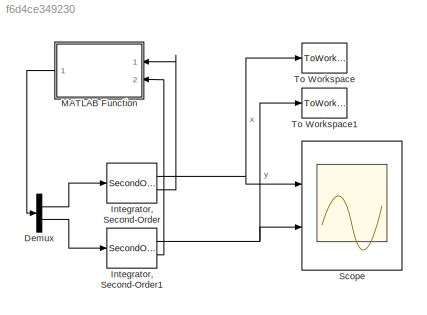
MODEL slx_f6d4ce349230
KIND model
CONFIG AbsTol = 1e-10
CONFIG EnableMultiTasking = off
CONFIG FixedStep = auto
CONFIG MaxStep = auto
CONFIG MinStep = auto
CONFIG RelTol = 1e-10
CONFIG SampleTimeConstraint = Unconstrained
CONFIG SolverName = ode45
CONFIG StartTime = 0.0
CONFIG StopTime = 1
BLOCK [Demux] Demux
  Outputs = 2
  Ports = [1, 2]
BLOCK [SecondOrderIntegrator] Integrator, Second-Order
  ICDXDT = vx_0
  ICX = x0
  Ports = [1, 2]
BLOCK [SecondOrderIntegrator] Integrator, Second-Order1
  ICDXDT = vy_0
  ICX = y0
  Ports = [1, 2]
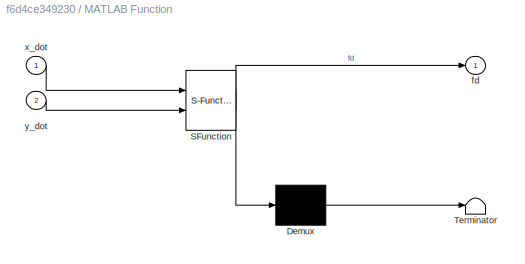
BLOCK [SubSystem] MATLAB Function
  ErrorFcn = Stateflow.Translate.translate
  NameLocation = top
  PermitHierarchicalResolution = ExplicitOnly
  Ports = [2, 1]
  RequestExecContextInheritance = off
  SFBlockType = MATLAB Function
  TreatAsAtomicUnit = on
BLOCK [Demux] MATLAB Function/ Demux 
  Outputs = 1
  Ports = [1, 1]
BLOCK [S-Function] MATLAB Function/ SFunction 
  EnableBusSupport = on
  FunctionName = sf_sfun
  Parameters = par
  PortCounts = [2 2]
  Ports = [2, 2]
  SFcnIsStateOwnerBlock = off
  SFunctionDeploymentMode = off
  Tag = Stateflow S-Function 2
BLOCK [Terminator] MATLAB Function/ Terminator 
BLOCK [Outport] MATLAB Function/fd
BLOCK [Inport] MATLAB Function/x_dot
BLOCK [Inport] MATLAB Function/y_dot
  Port = 2
BLOCK [Scope] Scope
  Floating = off
  NumInputPorts = 2
  Ports = [2]
  ScopeSpecificationString = Simulink.scopes.TimeScopeBlockCfg('CurrentConfiguration', extmgr.ConfigurationSet(extmgr.Configuration('Core','General UI',true),extmgr.Configuration('Core','Source UI',true),extmgr.Configuration('Sources','WiredSimulink',true),extmgr.Configuration('Visuals','Time Domain',true,'SerializedDisplays',{struct('MinYLimReal','-0.52044','MaxYLimReal','4.68396','YLabelReal','','MinYLimMag','0.00000','MaxY...<+1984ch>
BLOCK [ToWorkspace] To Workspace
  FixptAsFi = on
  MaxDataPoints = inf
  Ports = [1]
  SampleTime = -1
  SaveFormat = Timeseries
  VariableName = x_sim
BLOCK [ToWorkspace] To Workspace1
  FixptAsFi = on
  MaxDataPoints = inf
  Ports = [1]
  SampleTime = -1
  SaveFormat = Timeseries
  VariableName = y_sim
LINE Demux:1 -> Integrator, Second-Order:1
LINE Demux:2 -> Integrator, Second-Order1:1
NET Integrator, Second-Order1:1 -> Scope:2, To Workspace1:1
LINE Integrator, Second-Order1:2 -> MATLAB Function:2
NET Integrator, Second-Order:1 -> Scope:1, To Workspace:1
LINE Integrator, Second-Order:2 -> MATLAB Function:1
LINE MATLAB Function:1 -> Demux:1
note: NET lines group one-source signal fan-out (src -> all destinations, sorted); 1:1 wires keep LINE
CHART MATLAB Function states=1 transitions=1
  STATE_LABEL 'eML_blk_kernel()'
  STATE_LABEL 'SCRIPT:\nfunction fd = fcn(x_dot, y_dot, par)\n\nm_Ball = par.m_Ball;\ng = par.g;\ncw = par.cw;\nd_Ball = par.d_Ball;\nrho = par.rho;\n\n\nfdx = -((1/8)*rho*d_Ball^2*pi*cw*sqrt(x_dot^2+y_dot^2)*x_dot)/m_Ball;\nfdy = -(((1/8)*rho*d_Ball^2*pi*cw*sqrt(x_dot^2+y_dot^2)*y_dot)/m_Ball)-g;\nfd = [fdx, fdy];\n\n'
CHART  states=0 transitions=0
